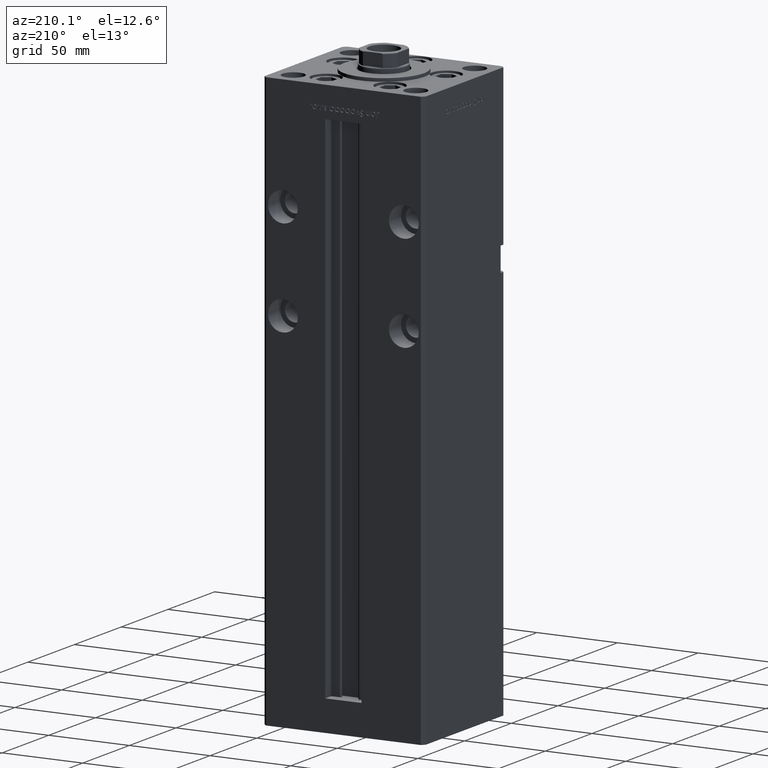
[diagram: clean part render]
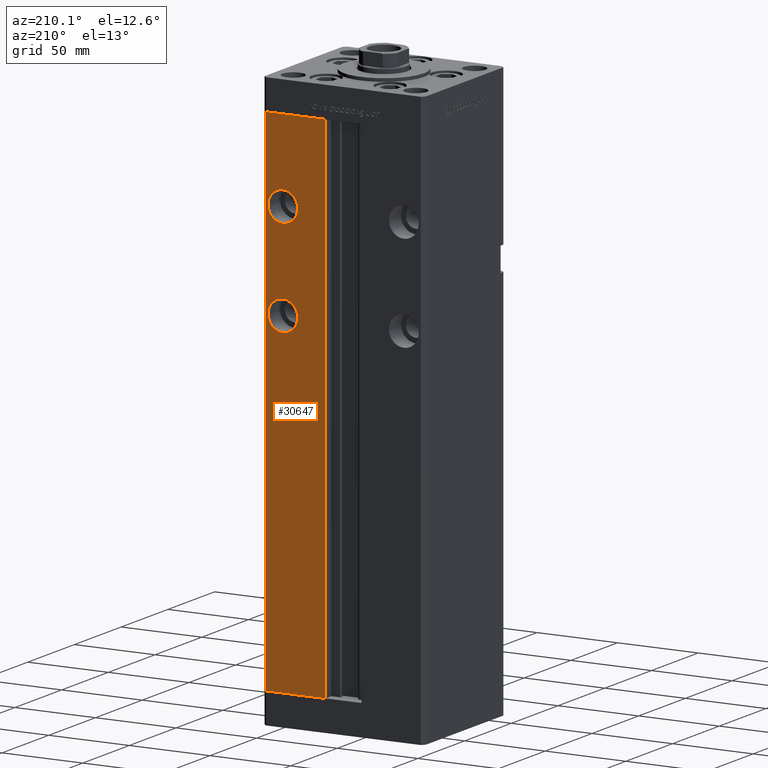
[diagram: same view with one face highlighted and labeled with its STEP entity id]
A machine part, auxiliary view. The second image highlights one B-rep face of the part: STEP entity #30647.
In plain terms, the highlighted planar face has unit normal (0, -1, 0).
Its self-contained STEP definition (entity closure, byte-faithful):
#51 = CIRCLE ( 'NONE', #9501, 9.249999999999980460 ) ;
#501 = VERTEX_POINT ( 'NONE', #34170 ) ;
#925 = VECTOR ( 'NONE', #24409, 1000.000000000000000 ) ;
#1467 = CARTESIAN_POINT ( 'NONE',  ( 11.24999999999999645, 43.50000000000000000, 0.000000000000000000 ) ) ;
#1568 = ORIENTED_EDGE ( 'NONE', *, *, #42706, .T. ) ;
#2485 = VERTEX_POINT ( 'NONE', #25478 ) ;
#2537 = LINE ( 'NONE', #19471, #31302 ) ;
#3011 = VERTEX_POINT ( 'NONE', #53029 ) ;
#3107 = ORIENTED_EDGE ( 'NONE', *, *, #10753, .T. ) ;
#4676 = VECTOR ( 'NONE', #22867, 1000.000000000000000 ) ;
#4864 = EDGE_LOOP ( 'NONE', ( #22558, #16313, #3107, #1568 ) ) ;
#5845 = DIRECTION ( 'NONE',  ( 0.000000000000000000, 0.000000000000000000, 1.000000000000000000 ) ) ;
#5917 = CARTESIAN_POINT ( 'NONE',  ( 37.50000000000000000, 43.50000000000000000, 216.7500000000000284 ) ) ;
#5943 = CARTESIAN_POINT ( 'NONE',  ( 48.00000000000000711, 43.50000000000000000, 318.5000000000000000 ) ) ;
#7471 = CARTESIAN_POINT ( 'NONE',  ( -11.24999999999999645, 43.50000000000000000, 0.000000000000000000 ) ) ;
#8907 = VERTEX_POINT ( 'NONE', #1467 ) ;
#9501 = AXIS2_PLACEMENT_3D ( 'NONE', #13582, #17338, #29974 ) ;
#9978 = LINE ( 'NONE', #5943, #4676 ) ;
#10753 = EDGE_CURVE ( 'NONE', #3011, #2485, #35720, .T. ) ;
#10803 = EDGE_CURVE ( 'NONE', #46048, #501, #51421, .T. ) ;
#10954 = CARTESIAN_POINT ( 'NONE',  ( -11.24999999999999645, 43.50000000000000000, 318.5000000000000000 ) ) ;
#10966 = EDGE_CURVE ( 'NONE', #15916, #25153, #13811, .T. ) ;
#11516 = DIRECTION ( 'NONE',  ( 0.000000000000000000, 1.000000000000000000, -0.000000000000000000 ) ) ;
#11752 = FACE_BOUND ( 'NONE', #29124, .T. ) ;
#12049 = CARTESIAN_POINT ( 'NONE',  ( 37.50000000000000000, 43.50000000000000000, 207.5000000000000284 ) ) ;
#13582 = CARTESIAN_POINT ( 'NONE',  ( 37.50000000000000000, 43.50000000000000000, 267.5000000000000000 ) ) ;
#13811 = CIRCLE ( 'NONE', #35142, 9.249999999999980460 ) ;
#14720 = CARTESIAN_POINT ( 'NONE',  ( 37.50000000000000000, 43.50000000000000000, 207.5000000000000284 ) ) ;
#14909 = EDGE_CURVE ( 'NONE', #25153, #15916, #51, .T. ) ;
#15285 = DIRECTION ( 'NONE',  ( 1.000000000000000000, 0.000000000000000000, 0.000000000000000000 ) ) ;
#15787 = FACE_BOUND ( 'NONE', #30725, .T. ) ;
#15916 = VERTEX_POINT ( 'NONE', #31780 ) ;
#16313 = ORIENTED_EDGE ( 'NONE', *, *, #41773, .T. ) ;
#16395 = EDGE_CURVE ( 'NONE', #27570, #8907, #32188, .T. ) ;
#17338 = DIRECTION ( 'NONE',  ( 0.000000000000000000, 1.000000000000000000, 0.000000000000000000 ) ) ;
#18249 = ORIENTED_EDGE ( 'NONE', *, *, #14909, .F. ) ;
#19471 = CARTESIAN_POINT ( 'NONE',  ( 11.24999999999999645, 43.50000000000000000, 0.000000000000000000 ) ) ;
#19774 = ORIENTED_EDGE ( 'NONE', *, *, #10966, .F. ) ;
#19829 = FACE_OUTER_BOUND ( 'NONE', #4864, .T. ) ;
#22558 = ORIENTED_EDGE ( 'NONE', *, *, #16395, .T. ) ;
#22867 = DIRECTION ( 'NONE',  ( -0.000000000000000000, -0.000000000000000000, -1.000000000000000000 ) ) ;
#23342 = ORIENTED_EDGE ( 'NONE', *, *, #32045, .F. ) ;
#23601 = DIRECTION ( 'NONE',  ( 0.000000000000000000, -1.000000000000000000, 0.000000000000000000 ) ) ;
#24409 = DIRECTION ( 'NONE',  ( -1.000000000000000000, 0.000000000000000000, 0.000000000000000000 ) ) ;
#25153 = VERTEX_POINT ( 'NONE', #31410 ) ;
#25478 = CARTESIAN_POINT ( 'NONE',  ( 48.00000000000000711, 43.50000000000000000, 318.5000000000000000 ) ) ;
#27570 = VERTEX_POINT ( 'NONE', #33891 ) ;
#28378 = AXIS2_PLACEMENT_3D ( 'NONE', #12049, #11516, #52618 ) ;
#29124 = EDGE_LOOP ( 'NONE', ( #50130, #23342 ) ) ;
#29974 = DIRECTION ( 'NONE',  ( 0.000000000000000000, 0.000000000000000000, 1.000000000000000000 ) ) ;
#30647 = ADVANCED_FACE ( 'NONE', ( #11752, #15787, #19829 ), #52324, .F. ) ;
#30725 = EDGE_LOOP ( 'NONE', ( #19774, #18249 ) ) ;
#31302 = VECTOR ( 'NONE', #31560, 1000.000000000000000 ) ;
#31410 = CARTESIAN_POINT ( 'NONE',  ( 37.50000000000000000, 43.50000000000000000, 258.2500000000000568 ) ) ;
#31560 = DIRECTION ( 'NONE',  ( -0.000000000000000000, -0.000000000000000000, 1.000000000000000000 ) ) ;
#31780 = CARTESIAN_POINT ( 'NONE',  ( 37.50000000000000000, 43.50000000000000000, 276.7500000000000000 ) ) ;
#32045 = EDGE_CURVE ( 'NONE', #501, #46048, #40575, .T. ) ;
#32188 = LINE ( 'NONE', #7471, #925 ) ;
#33514 = VECTOR ( 'NONE', #15285, 1000.000000000000000 ) ;
#33891 = CARTESIAN_POINT ( 'NONE',  ( 48.00000000000000711, 43.50000000000000000, 0.000000000000000000 ) ) ;
#34170 = CARTESIAN_POINT ( 'NONE',  ( 37.50000000000000000, 43.50000000000000000, 198.2500000000000000 ) ) ;
#34894 = DIRECTION ( 'NONE',  ( 0.000000000000000000, 1.000000000000000000, -0.000000000000000000 ) ) ;
#35142 = AXIS2_PLACEMENT_3D ( 'NONE', #50442, #46423, #5845 ) ;
#35720 = LINE ( 'NONE', #52087, #33514 ) ;
#37111 = AXIS2_PLACEMENT_3D ( 'NONE', #14720, #34894, #50742 ) ;
#40575 = CIRCLE ( 'NONE', #37111, 9.250000000000008882 ) ;
#41773 = EDGE_CURVE ( 'NONE', #8907, #3011, #2537, .T. ) ;
#42706 = EDGE_CURVE ( 'NONE', #2485, #27570, #9978, .T. ) ;
#46048 = VERTEX_POINT ( 'NONE', #5917 ) ;
#46423 = DIRECTION ( 'NONE',  ( 0.000000000000000000, 1.000000000000000000, 0.000000000000000000 ) ) ;
#48305 = DIRECTION ( 'NONE',  ( 0.000000000000000000, -0.000000000000000000, -1.000000000000000000 ) ) ;
#50130 = ORIENTED_EDGE ( 'NONE', *, *, #10803, .F. ) ;
#50442 = CARTESIAN_POINT ( 'NONE',  ( 37.50000000000000000, 43.50000000000000000, 267.5000000000000000 ) ) ;
#50742 = DIRECTION ( 'NONE',  ( 0.000000000000000000, 0.000000000000000000, -1.000000000000000000 ) ) ;
#51421 = CIRCLE ( 'NONE', #28378, 9.250000000000008882 ) ;
#52087 = CARTESIAN_POINT ( 'NONE',  ( -11.24999999999999645, 43.50000000000000000, 318.5000000000000000 ) ) ;
#52324 = PLANE ( 'NONE',  #52515 ) ;
#52515 = AXIS2_PLACEMENT_3D ( 'NONE', #10954, #23601, #48305 ) ;
#52618 = DIRECTION ( 'NONE',  ( 0.000000000000000000, 0.000000000000000000, -1.000000000000000000 ) ) ;
#53029 = CARTESIAN_POINT ( 'NONE',  ( 11.24999999999998934, 43.50000000000000000, 318.5000000000000000 ) ) ;